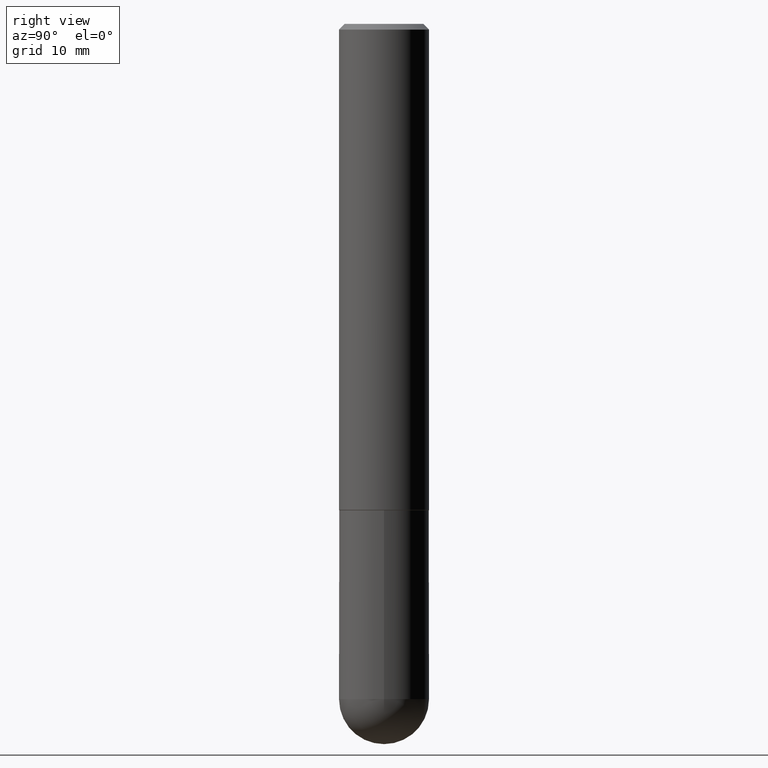
[diagram: clean part render]
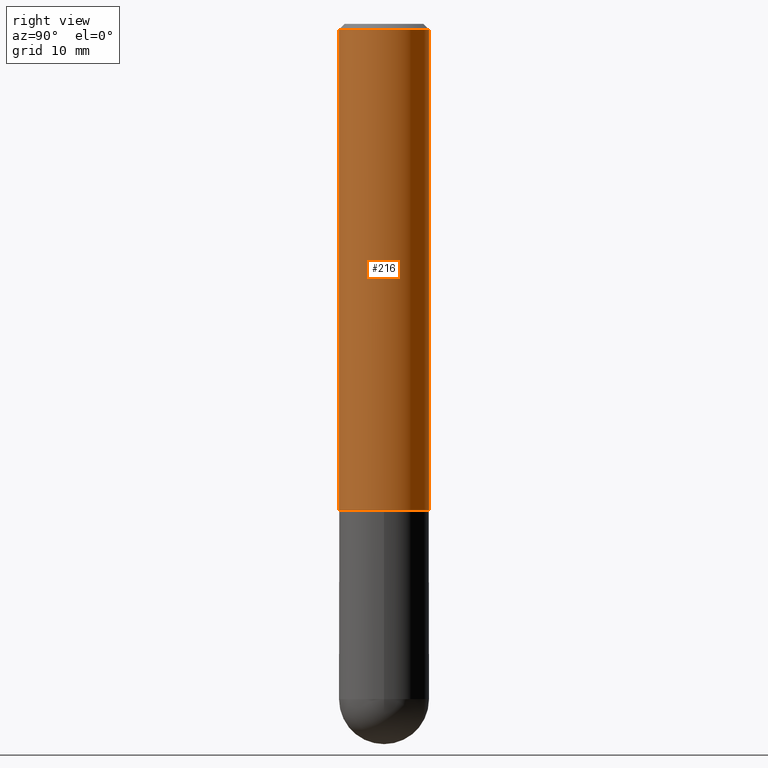
[diagram: same view with one face highlighted and labeled with its STEP entity id]
A machine part, right view. The second image highlights one B-rep face of the part: STEP entity #216.
In plain terms, the highlighted cylindrical surface (partial cylindrical patch) has radius 3.9688 mm, axis along (-0, 0, 1).
Its self-contained STEP definition (entity closure, byte-faithful):
#3 = ORIENTED_EDGE ( 'NONE', *, *, #37, .T. ) ;
#5 = VERTEX_POINT ( 'NONE', #86 ) ;
#9 = AXIS2_PLACEMENT_3D ( 'NONE', #308, #88, #243 ) ;
#18 = DIRECTION ( 'NONE',  ( -2.446097073552019449E-29, 3.490581624215010938E-15, 1.000000000000000000 ) ) ;
#37 = EDGE_CURVE ( 'NONE', #5, #105, #333, .T. ) ;
#52 = EDGE_CURVE ( 'NONE', #5, #159, #142, .T. ) ;
#53 = EDGE_LOOP ( 'NONE', ( #3, #223, #85, #349 ) ) ;
#72 = AXIS2_PLACEMENT_3D ( 'NONE', #360, #209, #135 ) ;
#84 = CARTESIAN_POINT ( 'NONE',  ( 1.110223024625178431E-15, 0.1562499999999943379, -1.687000000000000499 ) ) ;
#85 = ORIENTED_EDGE ( 'NONE', *, *, #362, .F. ) ;
#86 = CARTESIAN_POINT ( 'NONE',  ( -1.091087918388439336E-15, -0.1562500000000060785, -1.686999999999999611 ) ) ;
#88 = DIRECTION ( 'NONE',  ( -2.446097073552019730E-29, 3.490581624215010938E-15, 1.000000000000000000 ) ) ;
#105 = VERTEX_POINT ( 'NONE', #84 ) ;
#124 = LINE ( 'NONE', #246, #133 ) ;
#133 = VECTOR ( 'NONE', #377, 39.37007874015748143 ) ;
#135 = DIRECTION ( 'NONE',  ( -6.982962677686265922E-15, -1.000000000000000000, 3.496765431890251792E-15 ) ) ;
#142 = LINE ( 'NONE', #168, #286 ) ;
#151 = DIRECTION ( 'NONE',  ( -6.982962677686265922E-15, -1.000000000000000000, 3.490581624215010938E-15 ) ) ;
#159 = VERTEX_POINT ( 'NONE', #227 ) ;
#168 = CARTESIAN_POINT ( 'NONE',  ( -1.091087918388479962E-15, -0.1562500000000001388, 5.454033787835959398E-16 ) ) ;
#178 = CARTESIAN_POINT ( 'NONE',  ( 1.091087918388479765E-15, 0.1562499999999999722, -0.02000000000000057981 ) ) ;
#183 = CARTESIAN_POINT ( 'NONE',  ( 0.000000000000000000, 0.000000000000000000, 0.000000000000000000 ) ) ;
#185 = DIRECTION ( 'NONE',  ( -2.446097073552019730E-29, 3.490581624215010938E-15, 1.000000000000000000 ) ) ;
#209 = DIRECTION ( 'NONE',  ( -2.446097073552019730E-29, 3.490581624215010938E-15, 1.000000000000000000 ) ) ;
#216 = ADVANCED_FACE ( 'NONE', ( #344 ), #339, .T. ) ;
#223 = ORIENTED_EDGE ( 'NONE', *, *, #354, .T. ) ;
#227 = CARTESIAN_POINT ( 'NONE',  ( -1.071952812151801412E-15, -0.1562500000000001110, -0.01999999999999948694 ) ) ;
#243 = DIRECTION ( 'NONE',  ( -6.982962677686266711E-15, -1.000000000000000000, 3.496765431890256131E-15 ) ) ;
#246 = CARTESIAN_POINT ( 'NONE',  ( 1.110223024625157329E-15, 0.1562500000000001388, -5.454033787835959398E-16 ) ) ;
#286 = VECTOR ( 'NONE', #18, 39.37007874015748143 ) ;
#287 = VERTEX_POINT ( 'NONE', #178 ) ;
#308 = CARTESIAN_POINT ( 'NONE',  ( 4.892194147104047096E-31, -6.981163248430033315E-17, -0.02000000000000003511 ) ) ;
#333 = CIRCLE ( 'NONE', #72, 0.1562500000000002220 ) ;
#339 = CYLINDRICAL_SURFACE ( 'NONE', #351, 0.1562500000000001388 ) ;
#344 = FACE_OUTER_BOUND ( 'NONE', #53, .T. ) ;
#349 = ORIENTED_EDGE ( 'NONE', *, *, #52, .F. ) ;
#351 = AXIS2_PLACEMENT_3D ( 'NONE', #183, #185, #151 ) ;
#354 = EDGE_CURVE ( 'NONE', #105, #287, #124, .T. ) ;
#360 = CARTESIAN_POINT ( 'NONE',  ( 4.126565763082257571E-29, -5.888611200050725168E-15, -1.687000000000000055 ) ) ;
#362 = EDGE_CURVE ( 'NONE', #159, #287, #386, .T. ) ;
#377 = DIRECTION ( 'NONE',  ( -2.446097073552019449E-29, 3.490581624215010938E-15, 1.000000000000000000 ) ) ;
#386 = CIRCLE ( 'NONE', #9, 0.1562500000000000278 ) ;